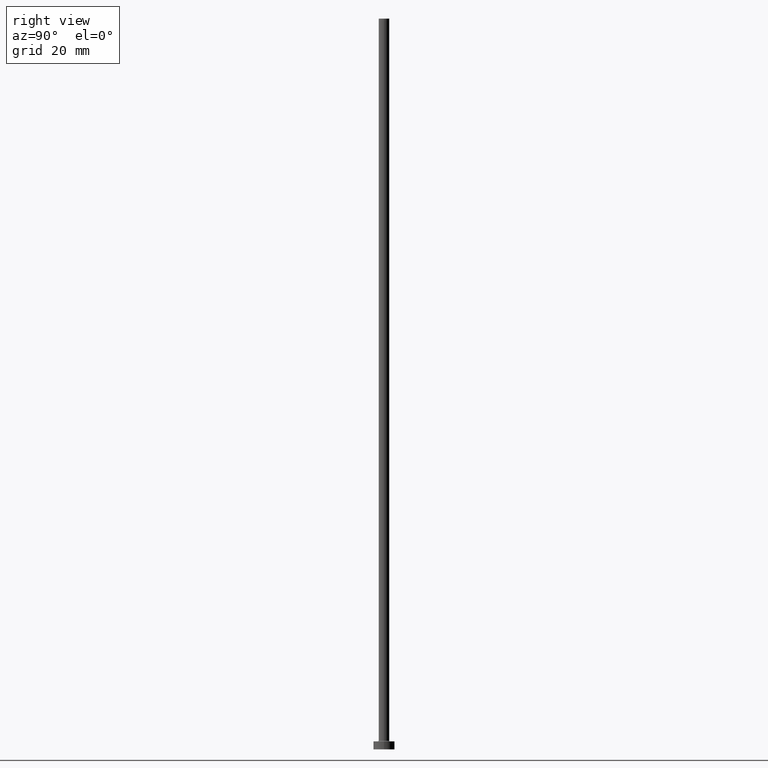
[diagram: clean part render]
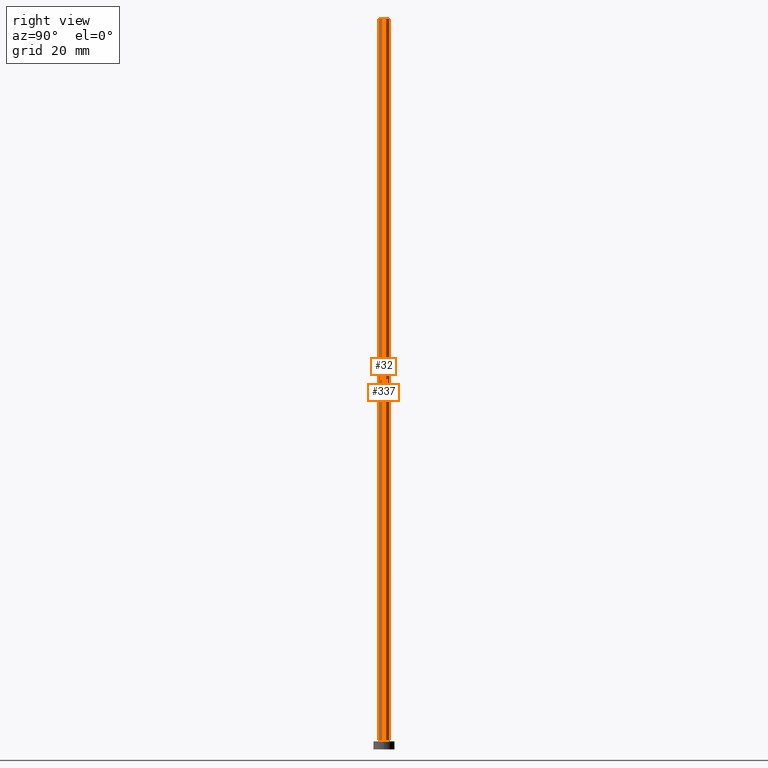
[diagram: same view with one multi-face feature highlighted, each face labeled with its STEP entity id]
A machine part, right view. The highlighted faces form ONE feature: a constant-radius fillet chain: 2 tangent blend faces with common blend radius 2 mm. The faces share edges in the B-rep.
Their STEP definitions:
[1] entity #337 (Cylinder):
#6 = DIRECTION ( 'NONE',  ( 0.000000000000000000, 0.000000000000000000, 1.000000000000000000 ) ) ;
#22 = EDGE_CURVE ( 'NONE', #395, #287, #254, .T. ) ;
#35 = VERTEX_POINT ( 'NONE', #68 ) ;
#49 = EDGE_CURVE ( 'NONE', #287, #440, #396, .T. ) ;
#68 = CARTESIAN_POINT ( 'NONE',  ( -2.000000000000000000, 0.000000000000000000, 275.0000000000000000 ) ) ;
#69 = CARTESIAN_POINT ( 'NONE',  ( -2.000000000000000000, 0.000000000000000000, 275.0000000000000000 ) ) ;
#90 = ORIENTED_EDGE ( 'NONE', *, *, #408, .F. ) ;
#103 = LINE ( 'NONE', #69, #105 ) ;
#105 = VECTOR ( 'NONE', #212, 1000.000000000000000 ) ;
#123 = CARTESIAN_POINT ( 'NONE',  ( 0.000000000000000000, 0.000000000000000000, 275.0000000000000000 ) ) ;
#125 = DIRECTION ( 'NONE',  ( 0.000000000000000000, 0.000000000000000000, 1.000000000000000000 ) ) ;
#129 = ORIENTED_EDGE ( 'NONE', *, *, #329, .F. ) ;
#147 = CARTESIAN_POINT ( 'NONE',  ( -2.000000000000000000, 0.000000000000000000, 3.300000000000025135 ) ) ;
#193 = DIRECTION ( 'NONE',  ( 1.000000000000000000, 0.000000000000000000, 0.000000000000000000 ) ) ;
#204 = VECTOR ( 'NONE', #365, 1000.000000000000000 ) ;
#210 = ORIENTED_EDGE ( 'NONE', *, *, #22, .T. ) ;
#212 = DIRECTION ( 'NONE',  ( -0.000000000000000000, -0.000000000000000000, -1.000000000000000000 ) ) ;
#222 = CARTESIAN_POINT ( 'NONE',  ( 0.000000000000000000, 0.000000000000000000, 275.0000000000000000 ) ) ;
#233 = CARTESIAN_POINT ( 'NONE',  ( 0.000000000000000000, 0.000000000000000000, 3.300000000000025135 ) ) ;
#254 = LINE ( 'NONE', #393, #204 ) ;
#268 = CIRCLE ( 'NONE', #327, 2.000000000000000000 ) ;
#272 = DIRECTION ( 'NONE',  ( 1.000000000000000000, 0.000000000000000000, 0.000000000000000000 ) ) ;
#274 = DIRECTION ( 'NONE',  ( -1.000000000000000000, 0.000000000000000000, 0.000000000000000000 ) ) ;
#280 = CARTESIAN_POINT ( 'NONE',  ( 2.000000000000000000, 2.449293598294706414E-16, 275.0000000000000000 ) ) ;
#287 = VERTEX_POINT ( 'NONE', #297 ) ;
#295 = FACE_OUTER_BOUND ( 'NONE', #296, .T. ) ;
#296 = EDGE_LOOP ( 'NONE', ( #129, #210, #410, #90 ) ) ;
#297 = CARTESIAN_POINT ( 'NONE',  ( 2.000000000000000000, 2.449293598294706414E-16, 3.300000000000025135 ) ) ;
#327 = AXIS2_PLACEMENT_3D ( 'NONE', #222, #6, #193 ) ;
#329 = EDGE_CURVE ( 'NONE', #395, #35, #268, .T. ) ;
#337 = ADVANCED_FACE ( 'NONE', ( #295 ), #429, .T. ) ;
#353 = DIRECTION ( 'NONE',  ( -0.000000000000000000, -0.000000000000000000, -1.000000000000000000 ) ) ;
#362 = AXIS2_PLACEMENT_3D ( 'NONE', #123, #353, #274 ) ;
#365 = DIRECTION ( 'NONE',  ( -0.000000000000000000, -0.000000000000000000, -1.000000000000000000 ) ) ;
#393 = CARTESIAN_POINT ( 'NONE',  ( 2.000000000000000000, 2.449293598294706414E-16, 275.0000000000000000 ) ) ;
#395 = VERTEX_POINT ( 'NONE', #280 ) ;
#396 = CIRCLE ( 'NONE', #460, 2.000000000000000000 ) ;
#408 = EDGE_CURVE ( 'NONE', #35, #440, #103, .T. ) ;
#410 = ORIENTED_EDGE ( 'NONE', *, *, #49, .T. ) ;
#429 = CYLINDRICAL_SURFACE ( 'NONE', #362, 2.000000000000000000 ) ;
#440 = VERTEX_POINT ( 'NONE', #147 ) ;
#460 = AXIS2_PLACEMENT_3D ( 'NONE', #233, #125, #272 ) ;
[2] entity #32 (Cylinder):
#8 = DIRECTION ( 'NONE',  ( 1.000000000000000000, 0.000000000000000000, 0.000000000000000000 ) ) ;
#9 = DIRECTION ( 'NONE',  ( 1.000000000000000000, 0.000000000000000000, 0.000000000000000000 ) ) ;
#11 = DIRECTION ( 'NONE',  ( 0.000000000000000000, 0.000000000000000000, 1.000000000000000000 ) ) ;
#22 = EDGE_CURVE ( 'NONE', #395, #287, #254, .T. ) ;
#32 = ADVANCED_FACE ( 'NONE', ( #151 ), #111, .T. ) ;
#35 = VERTEX_POINT ( 'NONE', #68 ) ;
#39 = ORIENTED_EDGE ( 'NONE', *, *, #408, .T. ) ;
#66 = AXIS2_PLACEMENT_3D ( 'NONE', #420, #149, #9 ) ;
#68 = CARTESIAN_POINT ( 'NONE',  ( -2.000000000000000000, 0.000000000000000000, 275.0000000000000000 ) ) ;
#69 = CARTESIAN_POINT ( 'NONE',  ( -2.000000000000000000, 0.000000000000000000, 275.0000000000000000 ) ) ;
#103 = LINE ( 'NONE', #69, #105 ) ;
#105 = VECTOR ( 'NONE', #212, 1000.000000000000000 ) ;
#109 = ORIENTED_EDGE ( 'NONE', *, *, #181, .F. ) ;
#111 = CYLINDRICAL_SURFACE ( 'NONE', #156, 2.000000000000000000 ) ;
#122 = AXIS2_PLACEMENT_3D ( 'NONE', #373, #11, #8 ) ;
#126 = EDGE_LOOP ( 'NONE', ( #320, #109, #39, #217 ) ) ;
#147 = CARTESIAN_POINT ( 'NONE',  ( -2.000000000000000000, 0.000000000000000000, 3.300000000000025135 ) ) ;
#149 = DIRECTION ( 'NONE',  ( 0.000000000000000000, 0.000000000000000000, 1.000000000000000000 ) ) ;
#151 = FACE_OUTER_BOUND ( 'NONE', #126, .T. ) ;
#156 = AXIS2_PLACEMENT_3D ( 'NONE', #350, #345, #213 ) ;
#181 = EDGE_CURVE ( 'NONE', #35, #395, #349, .T. ) ;
#204 = VECTOR ( 'NONE', #365, 1000.000000000000000 ) ;
#212 = DIRECTION ( 'NONE',  ( -0.000000000000000000, -0.000000000000000000, -1.000000000000000000 ) ) ;
#213 = DIRECTION ( 'NONE',  ( -1.000000000000000000, 0.000000000000000000, 0.000000000000000000 ) ) ;
#217 = ORIENTED_EDGE ( 'NONE', *, *, #277, .T. ) ;
#254 = LINE ( 'NONE', #393, #204 ) ;
#277 = EDGE_CURVE ( 'NONE', #440, #287, #304, .T. ) ;
#280 = CARTESIAN_POINT ( 'NONE',  ( 2.000000000000000000, 2.449293598294706414E-16, 275.0000000000000000 ) ) ;
#287 = VERTEX_POINT ( 'NONE', #297 ) ;
#297 = CARTESIAN_POINT ( 'NONE',  ( 2.000000000000000000, 2.449293598294706414E-16, 3.300000000000025135 ) ) ;
#304 = CIRCLE ( 'NONE', #122, 2.000000000000000000 ) ;
#320 = ORIENTED_EDGE ( 'NONE', *, *, #22, .F. ) ;
#345 = DIRECTION ( 'NONE',  ( -0.000000000000000000, -0.000000000000000000, -1.000000000000000000 ) ) ;
#349 = CIRCLE ( 'NONE', #66, 2.000000000000000000 ) ;
#350 = CARTESIAN_POINT ( 'NONE',  ( 0.000000000000000000, 0.000000000000000000, 275.0000000000000000 ) ) ;
#365 = DIRECTION ( 'NONE',  ( -0.000000000000000000, -0.000000000000000000, -1.000000000000000000 ) ) ;
#373 = CARTESIAN_POINT ( 'NONE',  ( 0.000000000000000000, 0.000000000000000000, 3.300000000000025135 ) ) ;
#393 = CARTESIAN_POINT ( 'NONE',  ( 2.000000000000000000, 2.449293598294706414E-16, 275.0000000000000000 ) ) ;
#395 = VERTEX_POINT ( 'NONE', #280 ) ;
#408 = EDGE_CURVE ( 'NONE', #35, #440, #103, .T. ) ;
#420 = CARTESIAN_POINT ( 'NONE',  ( 0.000000000000000000, 0.000000000000000000, 275.0000000000000000 ) ) ;
#440 = VERTEX_POINT ( 'NONE', #147 ) ;